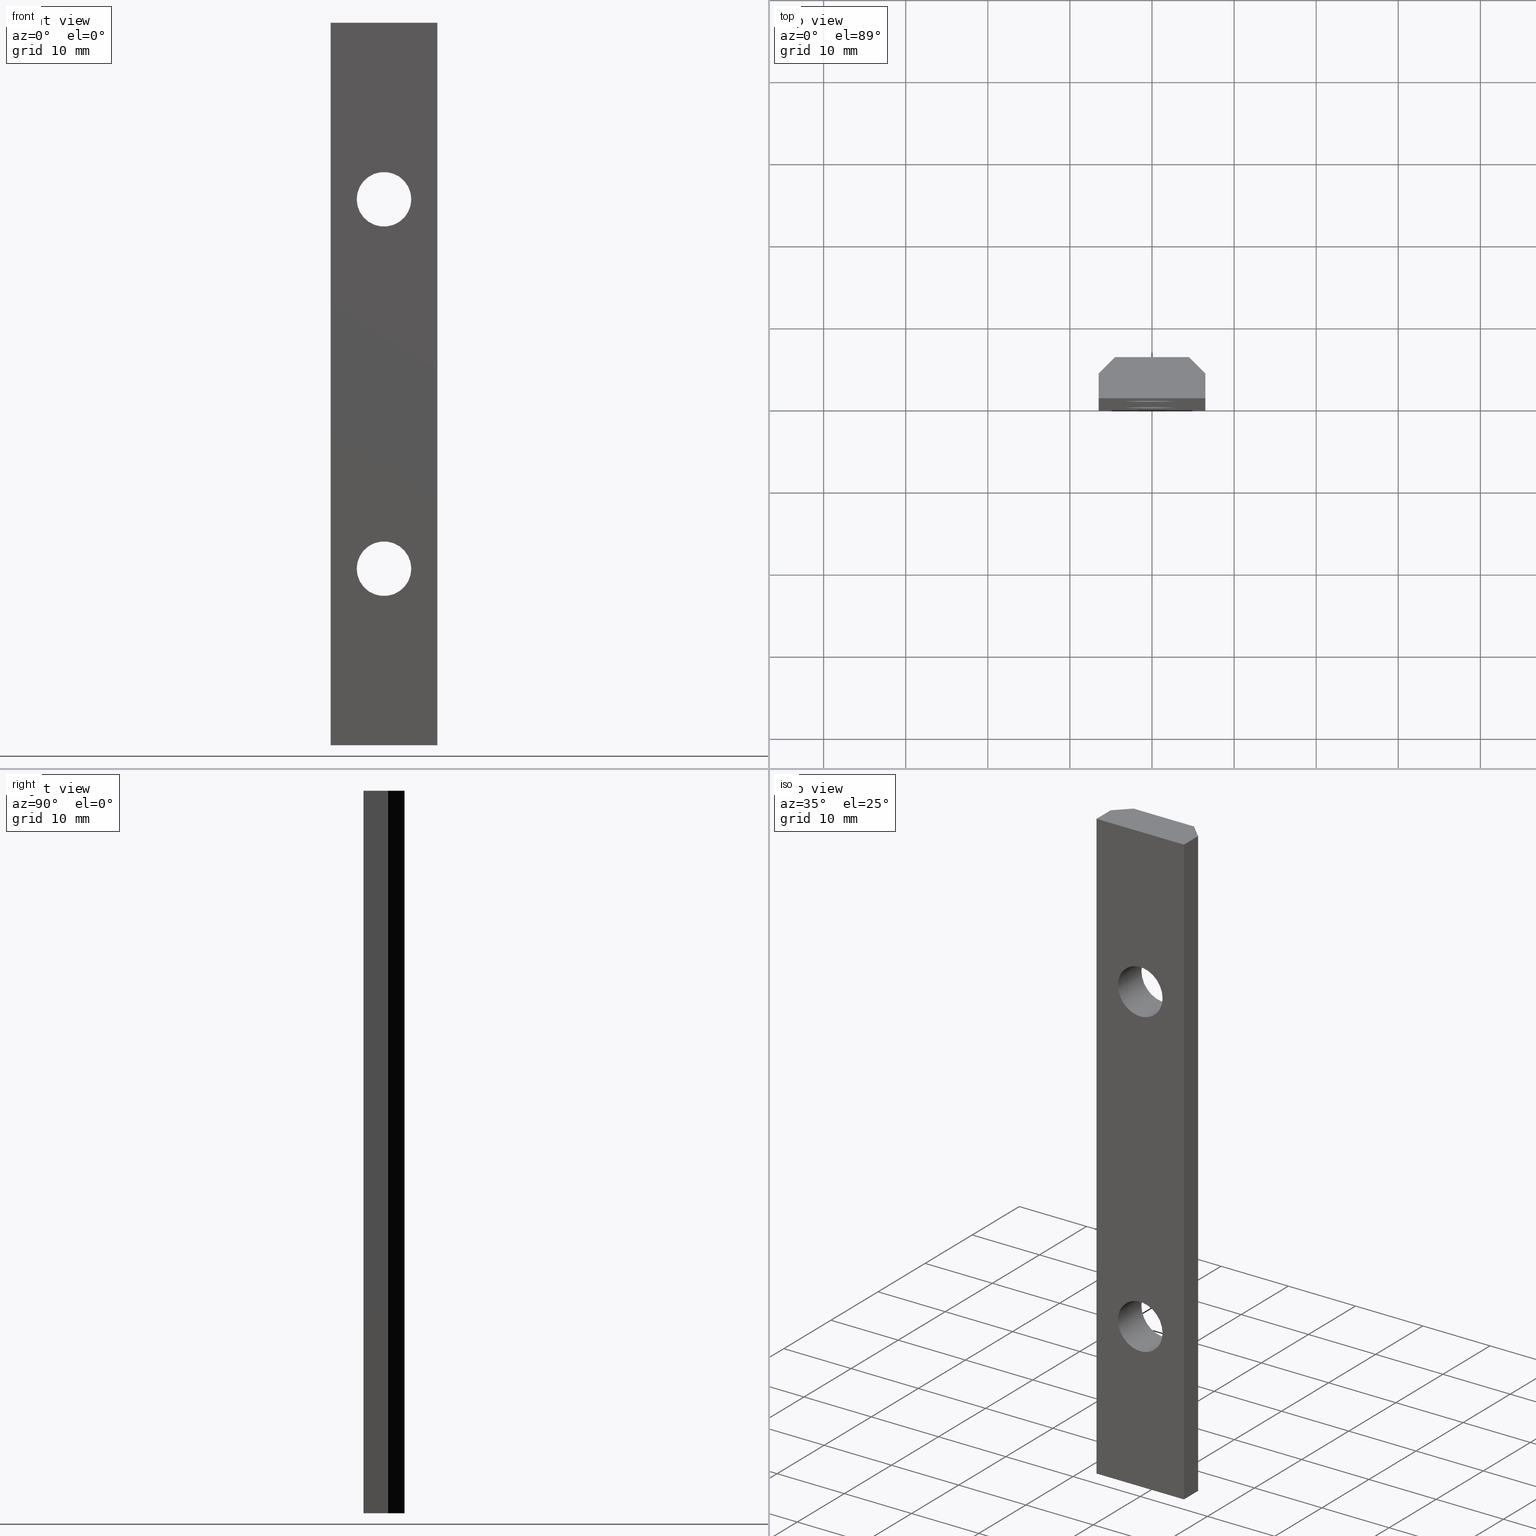
[diagram: canonical four-view strip — front | top / right | iso, engineering-drawing reading convention]
A machine part, canonical four-view strip (front | top / right | iso — engineering-drawing reading convention). The complete STEP part file that produces these views, byte-faithful:
ISO-10303-21;
HEADER;
/* Generated by software containing ST-Developer
 * from STEP Tools, Inc. (www.steptools.com) 
 */

FILE_DESCRIPTION(
/* description */ (''),
/* implementation_level */ '2;1');

FILE_NAME(
/* name */ 
'Q:\\Catalogo\\2_Accessori Dierre\\Per Download Web e catalogo cartace
o\\CATALOGO ELEMENTI ASSEMBLAGGIO\\PAGINA 22\\CGIPR0000074.stp',
/* time_stamp */ '2018-06-19T11:04:26+02:00',
/* author */ ('fzagni'),
/* organization */ (''),
/* preprocessor_version */ 'ST-DEVELOPER v16.1',
/* originating_system */ 'Autodesk Inventor 2016',
/* authorisation */ '');

FILE_SCHEMA (('AUTOMOTIVE_DESIGN { 1 0 10303 214 3 1 1 }'));
ENDSEC;

DATA;
#10=MECHANICAL_DESIGN_GEOMETRIC_PRESENTATION_REPRESENTATION('',(#13),#305);
#11=SHAPE_REPRESENTATION_RELATIONSHIP('SRR','None',#314,#12);
#12=ADVANCED_BREP_SHAPE_REPRESENTATION('',(#14),#304);
#13=STYLED_ITEM('',(#323),#14);
#14=MANIFOLD_SOLID_BREP('Solido1',#189);
#15=LINE('',#267,#33);
#16=LINE('',#269,#34);
#17=LINE('',#271,#35);
#18=LINE('',#272,#36);
#19=LINE('',#275,#37);
#20=LINE('',#277,#38);
#21=LINE('',#278,#39);
#22=LINE('',#281,#40);
#23=LINE('',#283,#41);
#24=LINE('',#284,#42);
#25=LINE('',#287,#43);
#26=LINE('',#289,#44);
#27=LINE('',#290,#45);
#28=LINE('',#293,#46);
#29=LINE('',#295,#47);
#30=LINE('',#296,#48);
#31=LINE('',#298,#49);
#32=LINE('',#299,#50);
#33=VECTOR('',#221,3.);
#34=VECTOR('',#222,88.);
#35=VECTOR('',#223,3.);
#36=VECTOR('',#224,88.);
#37=VECTOR('',#227,2.82842712474619);
#38=VECTOR('',#228,2.82842712474619);
#39=VECTOR('',#229,88.);
#40=VECTOR('',#232,9.);
#41=VECTOR('',#233,9.);
#42=VECTOR('',#234,88.);
#43=VECTOR('',#237,2.82842712474619);
#44=VECTOR('',#238,2.82842712474619);
#45=VECTOR('',#239,88.);
#46=VECTOR('',#242,3.);
#47=VECTOR('',#243,3.);
#48=VECTOR('',#244,88.);
#49=VECTOR('',#247,13.);
#50=VECTOR('',#248,13.);
#51=PLANE('',#197);
#52=PLANE('',#198);
#53=PLANE('',#199);
#54=PLANE('',#200);
#55=PLANE('',#201);
#56=PLANE('',#202);
#57=PLANE('',#203);
#58=PLANE('',#204);
#59=FACE_BOUND('',#76,.T.);
#60=FACE_BOUND('',#78,.T.);
#61=FACE_BOUND('',#82,.T.);
#62=FACE_BOUND('',#83,.T.);
#63=FACE_BOUND('',#87,.T.);
#64=FACE_BOUND('',#88,.T.);
#65=FACE_OUTER_BOUND('',#75,.T.);
#66=FACE_OUTER_BOUND('',#77,.T.);
#67=FACE_OUTER_BOUND('',#79,.T.);
#68=FACE_OUTER_BOUND('',#80,.T.);
#69=FACE_OUTER_BOUND('',#81,.T.);
#70=FACE_OUTER_BOUND('',#84,.T.);
#71=FACE_OUTER_BOUND('',#85,.T.);
#72=FACE_OUTER_BOUND('',#86,.T.);
#73=FACE_OUTER_BOUND('',#89,.T.);
#74=FACE_OUTER_BOUND('',#90,.T.);
#75=EDGE_LOOP('',(#133));
#76=EDGE_LOOP('',(#134));
#77=EDGE_LOOP('',(#135));
#78=EDGE_LOOP('',(#136));
#79=EDGE_LOOP('',(#137,#138,#139,#140));
#80=EDGE_LOOP('',(#141,#142,#143,#144));
#81=EDGE_LOOP('',(#145,#146,#147,#148));
#82=EDGE_LOOP('',(#149));
#83=EDGE_LOOP('',(#150));
#84=EDGE_LOOP('',(#151,#152,#153,#154));
#85=EDGE_LOOP('',(#155,#156,#157,#158));
#86=EDGE_LOOP('',(#159,#160,#161,#162));
#87=EDGE_LOOP('',(#163));
#88=EDGE_LOOP('',(#164));
#89=EDGE_LOOP('',(#165,#166,#167,#168,#169,#170));
#90=EDGE_LOOP('',(#171,#172,#173,#174,#175,#176));
#91=CIRCLE('',#192,3.3235);
#92=CIRCLE('',#193,3.3235);
#93=CIRCLE('',#195,3.3235);
#94=CIRCLE('',#196,3.3235);
#95=VERTEX_POINT('',#255);
#96=VERTEX_POINT('',#257);
#97=VERTEX_POINT('',#260);
#98=VERTEX_POINT('',#262);
#99=VERTEX_POINT('',#265);
#100=VERTEX_POINT('',#266);
#101=VERTEX_POINT('',#268);
#102=VERTEX_POINT('',#270);
#103=VERTEX_POINT('',#274);
#104=VERTEX_POINT('',#276);
#105=VERTEX_POINT('',#280);
#106=VERTEX_POINT('',#282);
#107=VERTEX_POINT('',#286);
#108=VERTEX_POINT('',#288);
#109=VERTEX_POINT('',#292);
#110=VERTEX_POINT('',#294);
#111=EDGE_CURVE('',#95,#95,#91,.T.);
#112=EDGE_CURVE('',#96,#96,#92,.T.);
#113=EDGE_CURVE('',#97,#97,#93,.T.);
#114=EDGE_CURVE('',#98,#98,#94,.T.);
#115=EDGE_CURVE('',#99,#100,#15,.T.);
#116=EDGE_CURVE('',#100,#101,#16,.T.);
#117=EDGE_CURVE('',#102,#101,#17,.T.);
#118=EDGE_CURVE('',#99,#102,#18,.T.);
#119=EDGE_CURVE('',#103,#99,#19,.T.);
#120=EDGE_CURVE('',#104,#102,#20,.T.);
#121=EDGE_CURVE('',#103,#104,#21,.T.);
#122=EDGE_CURVE('',#105,#103,#22,.T.);
#123=EDGE_CURVE('',#106,#104,#23,.T.);
#124=EDGE_CURVE('',#105,#106,#24,.T.);
#125=EDGE_CURVE('',#107,#105,#25,.T.);
#126=EDGE_CURVE('',#108,#106,#26,.T.);
#127=EDGE_CURVE('',#107,#108,#27,.T.);
#128=EDGE_CURVE('',#109,#107,#28,.T.);
#129=EDGE_CURVE('',#110,#108,#29,.T.);
#130=EDGE_CURVE('',#109,#110,#30,.T.);
#131=EDGE_CURVE('',#100,#109,#31,.T.);
#132=EDGE_CURVE('',#101,#110,#32,.T.);
#133=ORIENTED_EDGE('',*,*,#111,.F.);
#134=ORIENTED_EDGE('',*,*,#112,.F.);
#135=ORIENTED_EDGE('',*,*,#113,.F.);
#136=ORIENTED_EDGE('',*,*,#114,.F.);
#137=ORIENTED_EDGE('',*,*,#115,.T.);
#138=ORIENTED_EDGE('',*,*,#116,.T.);
#139=ORIENTED_EDGE('',*,*,#117,.F.);
#140=ORIENTED_EDGE('',*,*,#118,.F.);
#141=ORIENTED_EDGE('',*,*,#119,.T.);
#142=ORIENTED_EDGE('',*,*,#118,.T.);
#143=ORIENTED_EDGE('',*,*,#120,.F.);
#144=ORIENTED_EDGE('',*,*,#121,.F.);
#145=ORIENTED_EDGE('',*,*,#122,.T.);
#146=ORIENTED_EDGE('',*,*,#121,.T.);
#147=ORIENTED_EDGE('',*,*,#123,.F.);
#148=ORIENTED_EDGE('',*,*,#124,.F.);
#149=ORIENTED_EDGE('',*,*,#112,.T.);
#150=ORIENTED_EDGE('',*,*,#114,.T.);
#151=ORIENTED_EDGE('',*,*,#125,.T.);
#152=ORIENTED_EDGE('',*,*,#124,.T.);
#153=ORIENTED_EDGE('',*,*,#126,.F.);
#154=ORIENTED_EDGE('',*,*,#127,.F.);
#155=ORIENTED_EDGE('',*,*,#128,.T.);
#156=ORIENTED_EDGE('',*,*,#127,.T.);
#157=ORIENTED_EDGE('',*,*,#129,.F.);
#158=ORIENTED_EDGE('',*,*,#130,.F.);
#159=ORIENTED_EDGE('',*,*,#131,.T.);
#160=ORIENTED_EDGE('',*,*,#130,.T.);
#161=ORIENTED_EDGE('',*,*,#132,.F.);
#162=ORIENTED_EDGE('',*,*,#116,.F.);
#163=ORIENTED_EDGE('',*,*,#111,.T.);
#164=ORIENTED_EDGE('',*,*,#113,.T.);
#165=ORIENTED_EDGE('',*,*,#132,.T.);
#166=ORIENTED_EDGE('',*,*,#129,.T.);
#167=ORIENTED_EDGE('',*,*,#126,.T.);
#168=ORIENTED_EDGE('',*,*,#123,.T.);
#169=ORIENTED_EDGE('',*,*,#120,.T.);
#170=ORIENTED_EDGE('',*,*,#117,.T.);
#171=ORIENTED_EDGE('',*,*,#131,.F.);
#172=ORIENTED_EDGE('',*,*,#115,.F.);
#173=ORIENTED_EDGE('',*,*,#119,.F.);
#174=ORIENTED_EDGE('',*,*,#122,.F.);
#175=ORIENTED_EDGE('',*,*,#125,.F.);
#176=ORIENTED_EDGE('',*,*,#128,.F.);
#177=CYLINDRICAL_SURFACE('',#191,3.3235);
#178=CYLINDRICAL_SURFACE('',#194,3.3235);
#179=ADVANCED_FACE('',(#65,#59),#177,.F.);
#180=ADVANCED_FACE('',(#66,#60),#178,.F.);
#181=ADVANCED_FACE('',(#67),#51,.T.);
#182=ADVANCED_FACE('',(#68),#52,.T.);
#183=ADVANCED_FACE('',(#69,#61,#62),#53,.T.);
#184=ADVANCED_FACE('',(#70),#54,.T.);
#185=ADVANCED_FACE('',(#71),#55,.T.);
#186=ADVANCED_FACE('',(#72,#63,#64),#56,.T.);
#187=ADVANCED_FACE('',(#73),#57,.T.);
#188=ADVANCED_FACE('',(#74),#58,.F.);
#189=CLOSED_SHELL('',(#179,#180,#181,#182,#183,#184,#185,#186,#187,#188));
#190=AXIS2_PLACEMENT_3D('placement',#253,#205,#206);
#191=AXIS2_PLACEMENT_3D('',#254,#207,#208);
#192=AXIS2_PLACEMENT_3D('',#256,#209,#210);
#193=AXIS2_PLACEMENT_3D('',#258,#211,#212);
#194=AXIS2_PLACEMENT_3D('',#259,#213,#214);
#195=AXIS2_PLACEMENT_3D('',#261,#215,#216);
#196=AXIS2_PLACEMENT_3D('',#263,#217,#218);
#197=AXIS2_PLACEMENT_3D('',#264,#219,#220);
#198=AXIS2_PLACEMENT_3D('',#273,#225,#226);
#199=AXIS2_PLACEMENT_3D('',#279,#230,#231);
#200=AXIS2_PLACEMENT_3D('',#285,#235,#236);
#201=AXIS2_PLACEMENT_3D('',#291,#240,#241);
#202=AXIS2_PLACEMENT_3D('',#297,#245,#246);
#203=AXIS2_PLACEMENT_3D('',#300,#249,#250);
#204=AXIS2_PLACEMENT_3D('',#301,#251,#252);
#205=DIRECTION('axis',(0.,0.,1.));
#206=DIRECTION('refdir',(1.,0.,0.));
#207=DIRECTION('center_axis',(0.,1.,0.));
#208=DIRECTION('ref_axis',(1.,0.,0.));
#209=DIRECTION('center_axis',(0.,1.,0.));
#210=DIRECTION('ref_axis',(1.,0.,0.));
#211=DIRECTION('center_axis',(0.,-1.,0.));
#212=DIRECTION('ref_axis',(1.,0.,0.));
#213=DIRECTION('center_axis',(0.,1.,0.));
#214=DIRECTION('ref_axis',(1.,0.,0.));
#215=DIRECTION('center_axis',(0.,1.,0.));
#216=DIRECTION('ref_axis',(1.,0.,0.));
#217=DIRECTION('center_axis',(0.,-1.,0.));
#218=DIRECTION('ref_axis',(1.,0.,0.));
#219=DIRECTION('center_axis',(-1.,0.,0.));
#220=DIRECTION('ref_axis',(0.,-1.,0.));
#221=DIRECTION('',(0.,-1.,0.));
#222=DIRECTION('',(0.,0.,1.));
#223=DIRECTION('',(0.,-1.,0.));
#224=DIRECTION('',(0.,0.,1.));
#225=DIRECTION('center_axis',(-0.707106781186547,0.707106781186548,0.));
#226=DIRECTION('ref_axis',(-0.707106781186548,-0.707106781186547,0.));
#227=DIRECTION('',(-0.707106781186548,-0.707106781186547,0.));
#228=DIRECTION('',(-0.707106781186548,-0.707106781186547,0.));
#229=DIRECTION('',(0.,0.,1.));
#230=DIRECTION('center_axis',(0.,1.,0.));
#231=DIRECTION('ref_axis',(-1.,0.,0.));
#232=DIRECTION('',(-1.,0.,0.));
#233=DIRECTION('',(-1.,0.,0.));
#234=DIRECTION('',(0.,0.,1.));
#235=DIRECTION('center_axis',(0.707106781186547,0.707106781186548,0.));
#236=DIRECTION('ref_axis',(-0.707106781186548,0.707106781186547,0.));
#237=DIRECTION('',(-0.707106781186548,0.707106781186547,0.));
#238=DIRECTION('',(-0.707106781186548,0.707106781186547,0.));
#239=DIRECTION('',(0.,0.,1.));
#240=DIRECTION('center_axis',(1.,0.,0.));
#241=DIRECTION('ref_axis',(0.,1.,0.));
#242=DIRECTION('',(0.,1.,0.));
#243=DIRECTION('',(0.,1.,0.));
#244=DIRECTION('',(0.,0.,1.));
#245=DIRECTION('center_axis',(0.,-1.,0.));
#246=DIRECTION('ref_axis',(1.,0.,0.));
#247=DIRECTION('',(1.,0.,0.));
#248=DIRECTION('',(1.,0.,0.));
#249=DIRECTION('center_axis',(0.,0.,1.));
#250=DIRECTION('ref_axis',(1.,0.,0.));
#251=DIRECTION('center_axis',(0.,0.,1.));
#252=DIRECTION('ref_axis',(1.,0.,0.));
#253=CARTESIAN_POINT('',(0.,0.,0.));
#254=CARTESIAN_POINT('Origin',(0.,-84.095454429505,66.5));
#255=CARTESIAN_POINT('',(-3.3235,0.,66.5));
#256=CARTESIAN_POINT('Origin',(0.,0.,66.5));
#257=CARTESIAN_POINT('',(3.3235,5.,66.5));
#258=CARTESIAN_POINT('Origin',(0.,5.,66.5));
#259=CARTESIAN_POINT('Origin',(0.,-84.095454429505,21.5));
#260=CARTESIAN_POINT('',(-3.3235,0.,21.5));
#261=CARTESIAN_POINT('Origin',(0.,0.,21.5));
#262=CARTESIAN_POINT('',(3.3235,5.,21.5));
#263=CARTESIAN_POINT('Origin',(0.,5.,21.5));
#264=CARTESIAN_POINT('Origin',(-6.5,3.,0.));
#265=CARTESIAN_POINT('',(-6.5,3.,0.));
#266=CARTESIAN_POINT('',(-6.5,0.,0.));
#267=CARTESIAN_POINT('',(-6.5,3.,0.));
#268=CARTESIAN_POINT('',(-6.5,0.,88.));
#269=CARTESIAN_POINT('',(-6.5,0.,0.));
#270=CARTESIAN_POINT('',(-6.5,3.,88.));
#271=CARTESIAN_POINT('',(-6.5,3.,88.));
#272=CARTESIAN_POINT('',(-6.5,3.,0.));
#273=CARTESIAN_POINT('Origin',(-4.5,5.,0.));
#274=CARTESIAN_POINT('',(-4.5,5.,0.));
#275=CARTESIAN_POINT('',(-4.5,5.,0.));
#276=CARTESIAN_POINT('',(-4.5,5.,88.));
#277=CARTESIAN_POINT('',(-4.5,5.,88.));
#278=CARTESIAN_POINT('',(-4.5,5.,0.));
#279=CARTESIAN_POINT('Origin',(4.5,5.,0.));
#280=CARTESIAN_POINT('',(4.5,5.,0.));
#281=CARTESIAN_POINT('',(4.5,5.,0.));
#282=CARTESIAN_POINT('',(4.5,5.,88.));
#283=CARTESIAN_POINT('',(4.5,5.,88.));
#284=CARTESIAN_POINT('',(4.5,5.,0.));
#285=CARTESIAN_POINT('Origin',(6.5,3.,0.));
#286=CARTESIAN_POINT('',(6.5,3.,0.));
#287=CARTESIAN_POINT('',(6.5,3.,0.));
#288=CARTESIAN_POINT('',(6.5,3.,88.));
#289=CARTESIAN_POINT('',(6.5,3.,88.));
#290=CARTESIAN_POINT('',(6.5,3.,0.));
#291=CARTESIAN_POINT('Origin',(6.5,0.,0.));
#292=CARTESIAN_POINT('',(6.5,0.,0.));
#293=CARTESIAN_POINT('',(6.5,0.,0.));
#294=CARTESIAN_POINT('',(6.5,0.,88.));
#295=CARTESIAN_POINT('',(6.5,0.,88.));
#296=CARTESIAN_POINT('',(6.5,0.,0.));
#297=CARTESIAN_POINT('Origin',(-6.5,0.,0.));
#298=CARTESIAN_POINT('',(-6.5,0.,0.));
#299=CARTESIAN_POINT('',(-6.5,0.,88.));
#300=CARTESIAN_POINT('Origin',(0.,2.27672546073212,88.));
#301=CARTESIAN_POINT('Origin',(1.23699508916735E-16,2.27672546073212,0.));
#302=UNCERTAINTY_MEASURE_WITH_UNIT(LENGTH_MEASURE(0.01),#306,
'DISTANCE_ACCURACY_VALUE',
'Maximum model space distance between geometric entities at asserted c
onnectivities');
#303=UNCERTAINTY_MEASURE_WITH_UNIT(LENGTH_MEASURE(1.E-6),#306,
'DISTANCE_ACCURACY_VALUE',
'Maximum model space distance between geometric entities at asserted c
onnectivities');
#304=(
GEOMETRIC_REPRESENTATION_CONTEXT(3)
GLOBAL_UNCERTAINTY_ASSIGNED_CONTEXT((#302))
GLOBAL_UNIT_ASSIGNED_CONTEXT((#306,#309,#307))
REPRESENTATION_CONTEXT('','3D')
);
#305=(
GEOMETRIC_REPRESENTATION_CONTEXT(3)
GLOBAL_UNCERTAINTY_ASSIGNED_CONTEXT((#303))
GLOBAL_UNIT_ASSIGNED_CONTEXT((#306,#309,#307))
REPRESENTATION_CONTEXT('','3D')
);
#306=(
LENGTH_UNIT()
NAMED_UNIT(*)
SI_UNIT(.MILLI.,.METRE.)
);
#307=(
NAMED_UNIT(*)
SI_UNIT($,.STERADIAN.)
SOLID_ANGLE_UNIT()
);
#308=DIMENSIONAL_EXPONENTS(0.,0.,0.,0.,0.,0.,0.);
#309=(
CONVERSION_BASED_UNIT('degree',#311)
NAMED_UNIT(#308)
PLANE_ANGLE_UNIT()
);
#310=(
NAMED_UNIT(*)
PLANE_ANGLE_UNIT()
SI_UNIT($,.RADIAN.)
);
#311=PLANE_ANGLE_MEASURE_WITH_UNIT(PLANE_ANGLE_MEASURE(0.01745329252),#310);
#312=SHAPE_DEFINITION_REPRESENTATION(#313,#314);
#313=PRODUCT_DEFINITION_SHAPE('',$,#316);
#314=SHAPE_REPRESENTATION('',(#190),#304);
#315=PRODUCT_DEFINITION_CONTEXT('part definition',#320,'design');
#316=PRODUCT_DEFINITION('CGIPR0000074','CGIPR0000074',#317,#315);
#317=PRODUCT_DEFINITION_FORMATION('',$,#322);
#318=PRODUCT_RELATED_PRODUCT_CATEGORY('CGIPR0000074','CGIPR0000074',(#322));
#319=APPLICATION_PROTOCOL_DEFINITION('international standard',
'automotive_design',2009,#320);
#320=APPLICATION_CONTEXT(
'Core Data for Automotive Mechanical Design Process');
#321=PRODUCT_CONTEXT('part definition',#320,'mechanical');
#322=PRODUCT('CGIPR0000074','CGIPR0000074',$,(#321));
#323=PRESENTATION_STYLE_ASSIGNMENT((#324));
#324=SURFACE_STYLE_USAGE(.BOTH.,#325);
#325=SURFACE_SIDE_STYLE('',(#326));
#326=SURFACE_STYLE_FILL_AREA(#327);
#327=FILL_AREA_STYLE('',(#328));
#328=FILL_AREA_STYLE_COLOUR('',#329);
#329=COLOUR_RGB('',0.83921568627451,0.886274509803922,0.854901960784314);
ENDSEC;
END-ISO-10303-21;
